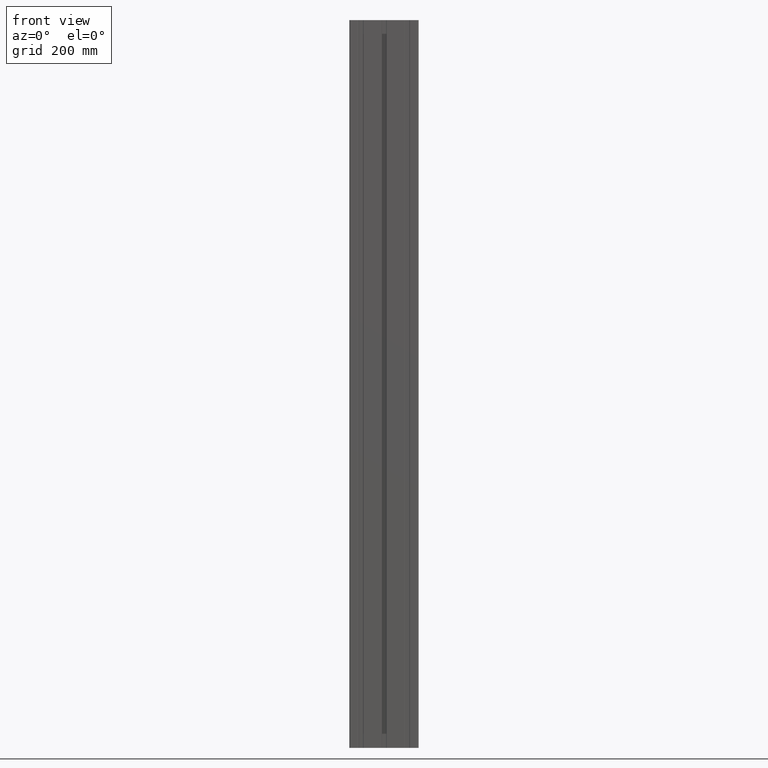
[diagram: clean part render]
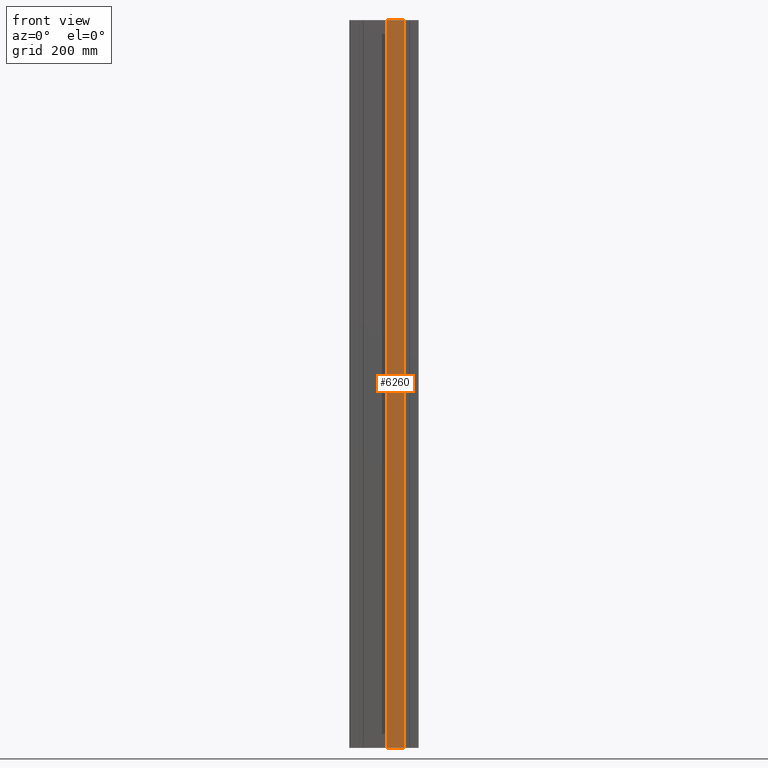
[diagram: same view with one face highlighted and labeled with its STEP entity id]
A machine part, front view. The second image highlights one B-rep face of the part: STEP entity #6260.
In plain terms, the highlighted planar face has unit normal (0, -1, 0).
Its self-contained STEP definition (entity closure, byte-faithful):
#144=PLANE('',#6823);
#398=FACE_OUTER_BOUND('',#708,.T.);
#708=EDGE_LOOP('',(#4940,#4941,#4942,#4943));
#920=LINE('',#9164,#1531);
#1286=LINE('',#10183,#1897);
#1287=LINE('',#10186,#1898);
#1288=LINE('',#10187,#1899);
#1531=VECTOR('',#7269,29.9999399959);
#1897=VECTOR('',#8335,1260.);
#1898=VECTOR('',#8338,29.9999399959);
#1899=VECTOR('',#8339,1260.);
#2522=VERTEX_POINT('',#9161);
#2523=VERTEX_POINT('',#9163);
#2826=VERTEX_POINT('',#10181);
#2827=VERTEX_POINT('',#10185);
#3121=EDGE_CURVE('',#2522,#2523,#920,.T.);
#3631=EDGE_CURVE('',#2826,#2522,#1286,.T.);
#3632=EDGE_CURVE('',#2826,#2827,#1287,.T.);
#3633=EDGE_CURVE('',#2523,#2827,#1288,.T.);
#4940=ORIENTED_EDGE('',*,*,#3121,.F.);
#4941=ORIENTED_EDGE('',*,*,#3631,.F.);
#4942=ORIENTED_EDGE('',*,*,#3632,.T.);
#4943=ORIENTED_EDGE('',*,*,#3633,.F.);
#6260=ADVANCED_FACE('',(#398),#144,.T.);
#6823=AXIS2_PLACEMENT_3D('',#10184,#8336,#8337);
#7269=DIRECTION('',(-1.,0.,0.));
#8335=DIRECTION('',(0.,0.,-1.));
#8336=DIRECTION('center_axis',(0.,-1.,0.));
#8337=DIRECTION('ref_axis',(0.,0.,-1.));
#8338=DIRECTION('',(-1.,0.,0.));
#8339=DIRECTION('',(0.,0.,1.));
#9161=CARTESIAN_POINT('',(-4.99999002401629,-19.9999600001873,0.));
#9163=CARTESIAN_POINT('',(-34.9999300199163,-19.9999600001873,0.));
#9164=CARTESIAN_POINT('',(-4.99999002401629,-19.9999600001873,0.));
#10181=CARTESIAN_POINT('',(-4.99999002401628,-19.9999600001873,1260.));
#10183=CARTESIAN_POINT('',(-4.99999002401629,-19.9999600001873,1260.));
#10184=CARTESIAN_POINT('Origin',(-34.9999300199163,-19.9999600001873,0.));
#10185=CARTESIAN_POINT('',(-34.9999300199163,-19.9999600001873,1260.));
#10186=CARTESIAN_POINT('',(-4.99999002401628,-19.9999600001873,1260.));
#10187=CARTESIAN_POINT('',(-34.9999300199163,-19.9999600001873,0.));